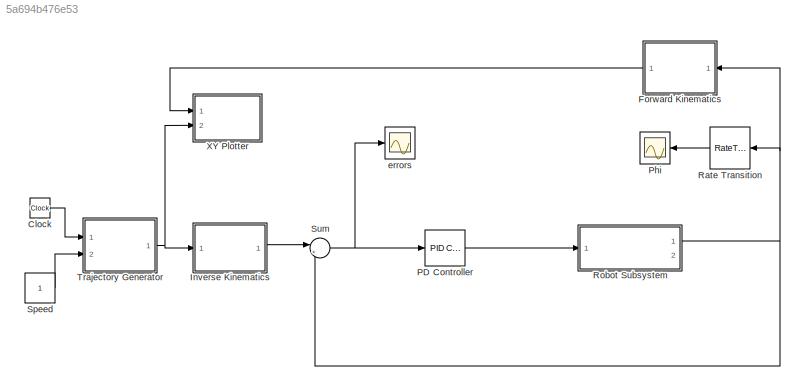
MODEL slx_5a694b476e53
KIND model
CONFIG AbsTol = auto
CONFIG EnableMultiTasking = on
CONFIG FixedStep = 0.001
CONFIG MaxStep = auto
CONFIG MinStep = auto
CONFIG RelTol = 1e-3
CONFIG SampleTimeConstraint = Unconstrained
CONFIG Solver = ode1
CONFIG SolverName = ode1
CONFIG StartTime = 0.0
CONFIG StopTime = 5
BLOCK [Clock] Clock
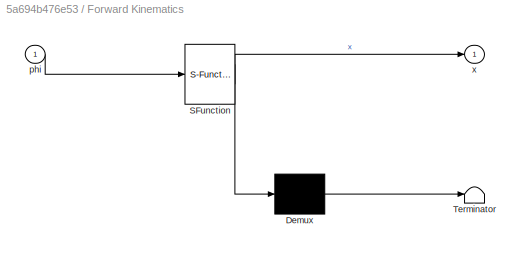
BLOCK [SubSystem] Forward Kinematics
  ErrorFcn = Stateflow.Translate.translate
  PermitHierarchicalResolution = ExplicitOnly
  Ports = [1, 1]
  RequestExecContextInheritance = off
  SFBlockType = MATLAB Function
  TreatAsAtomicUnit = on
BLOCK [Demux] Forward Kinematics/ Demux 
  Outputs = 1
  Ports = [1, 1]
BLOCK [S-Function] Forward Kinematics/ SFunction 
  EnableBusSupport = on
  FunctionName = sf_sfun
  PortCounts = [1 2]
  Ports = [1, 2]
  SFcnIsStateOwnerBlock = off
  SFunctionDeploymentMode = off
  Tag = Stateflow S-Function Lab1_PD 3
BLOCK [Terminator] Forward Kinematics/ Terminator 
BLOCK [Inport] Forward Kinematics/phi
  IconDisplay = Port number
BLOCK [Outport] Forward Kinematics/x
  IconDisplay = Port number
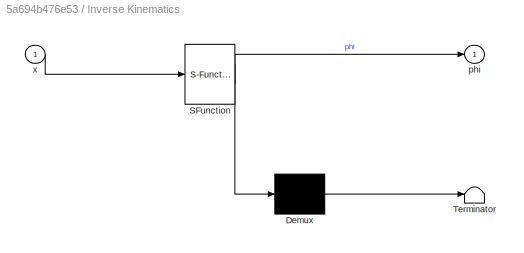
BLOCK [SubSystem] Inverse Kinematics
  ErrorFcn = Stateflow.Translate.translate
  PermitHierarchicalResolution = ExplicitOnly
  Ports = [1, 1]
  RequestExecContextInheritance = off
  SFBlockType = MATLAB Function
  TreatAsAtomicUnit = on
BLOCK [Demux] Inverse Kinematics/ Demux 
  Outputs = 1
  Ports = [1, 1]
BLOCK [S-Function] Inverse Kinematics/ SFunction 
  EnableBusSupport = on
  FunctionName = sf_sfun
  PortCounts = [1 2]
  Ports = [1, 2]
  SFcnIsStateOwnerBlock = off
  SFunctionDeploymentMode = off
  Tag = Stateflow S-Function Lab1_PD 1
BLOCK [Terminator] Inverse Kinematics/ Terminator 
BLOCK [Outport] Inverse Kinematics/phi
  IconDisplay = Port number
BLOCK [Inport] Inverse Kinematics/x
  IconDisplay = Port number
BLOCK [Reference] PD Controller  REF=simulink/Continuous/PID Controller
  AttributesFormatString = 'PGain='%<P>\n'DGain='%<D>
  Ports = [1, 1]
  SourceBlock = simulink/Continuous/PID Controller
  SourceProductBaseCode = SL
  SourceProductName = Simulink
  SourceType = PID 1dof
BLOCK [Scope] Phi
  AttributesFormatString = SampleTime =%<SampleTime>
  Floating = off
  NumInputPorts = 1
  Ports = [1]
  ScopeSpecificationString = Simulink.scopes.TimeScopeBlockCfg('CurrentConfiguration', extmgr.ConfigurationSet(extmgr.Configuration('Core','General UI',true),extmgr.Configuration('Core','Source UI',true),extmgr.Configuration('Sources','WiredSimulink',true,'DataLoggingVariableName','ScopeData3','DataLoggingSaveFormat','StructureWithTime','DataLoggingDecimation','10','DataLoggingDecimateData',true,'SampleTime','0.02'),extmgr.Co...<+1682ch>
BLOCK [RateTransition] Rate Transition
  OutPortSampleTime = 0.05
  OutPortSampleTimeMultiple = 10
  OutPortSampleTimeOpt = Inherit
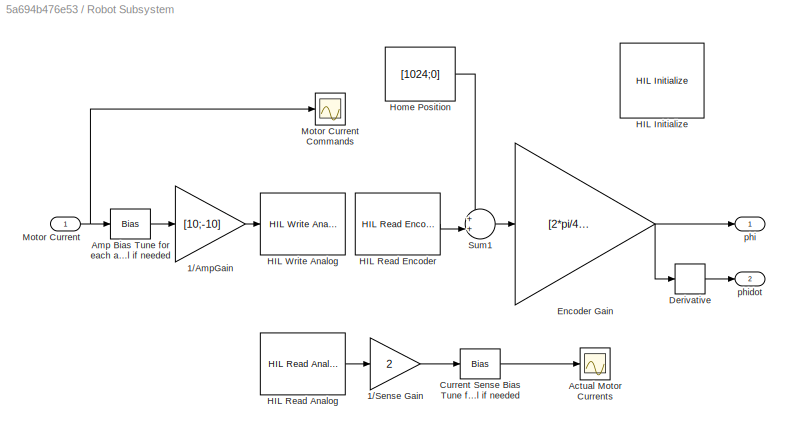
BLOCK [SubSystem] Robot Subsystem
  Ports = [1, 2]
  RequestExecContextInheritance = off
BLOCK [Gain] Robot Subsystem/1//AmpGain
  Gain = [10;-10]
  OutDataTypeStr = Inherit: Inherit via internal rule
  ParamDataTypeStr = Inherit: Inherit via internal rule
  SaturateOnIntegerOverflow = off
BLOCK [Gain] Robot Subsystem/1//Sense Gain
  Gain = 2
  OutDataTypeStr = Inherit: Inherit via internal rule
  ParamDataTypeStr = Inherit: Inherit via internal rule
  SaturateOnIntegerOverflow = off
BLOCK [Scope] Robot Subsystem/Actual Motor Currents
  Floating = off
  NumInputPorts = 1
  Ports = [1]
  ScopeSpecificationString = Simulink.scopes.TimeScopeBlockCfg('CurrentConfiguration', extmgr.ConfigurationSet(extmgr.Configuration('Core','General UI',true),extmgr.Configuration('Core','Source UI',true),extmgr.Configuration('Sources','WiredSimulink',true,'DataLoggingSaveFormat','StructureWithTime','DataLoggingDecimation','1','DataLoggingDecimateData',true),extmgr.Configuration('Visuals','Time Domain',true,'SerializedDisplays...<+1839ch>
BLOCK [Bias] Robot Subsystem/Amp Bias Tune for each amp//channel if needed
  Bias = [-0.042; 0.065]
  SaturateOnIntegerOverflow = off
BLOCK [Bias] Robot Subsystem/Current Sense Bias Tune for each amp//channel if needed
  Bias = [0.02; 0.037]
  SaturateOnIntegerOverflow = off
BLOCK [Derivative] Robot Subsystem/Derivative
BLOCK [Gain] Robot Subsystem/Encoder Gain
  Gain = [2*pi/4096 ; -2*pi/4096]
  OutDataTypeStr = Inherit: Inherit via internal rule
  ParamDataTypeStr = Inherit: Inherit via internal rule
  SaturateOnIntegerOverflow = off
BLOCK [Reference] Robot Subsystem/HIL Initialize  REF=quarc_library/Data Acquisition/Generic/Configuration/HIL Initialize
  AttributesFormatString = %<object_name> (%<board_type>-%<board_number>)
  Ports = []
  SourceBlock = quarc_library/Data Acquisition/Generic/Configuration/HIL Initialize
  SourceProductName = QUARC Targets
  SourceType = HIL Initialize
  UserDataPersistent = on
BLOCK [Reference] Robot Subsystem/HIL Read Analog  REF=quarc_library/Data Acquisition/Generic/Immediate I//O/HIL Read Analog
  AttributesFormatString = (%<object_name>)
  Ports = [0, 1]
  SourceBlock = quarc_library/Data Acquisition/Generic/Immediate I//O/HIL Read Analog
  SourceProductName = QUARC Targets
  SourceType = HIL Read Analog
  UserDataPersistent = on
BLOCK [Reference] Robot Subsystem/HIL Read Encoder  REF=quarc_library/Data Acquisition/Generic/Immediate I//O/HIL Read Encoder
  AttributesFormatString = (%<object_name>)
  Ports = [0, 1]
  SourceBlock = quarc_library/Data Acquisition/Generic/Immediate I//O/HIL Read Encoder
  SourceProductName = QUARC Targets
  SourceType = HIL Read Encoder
  UserDataPersistent = on
BLOCK [Reference] Robot Subsystem/HIL Write Analog  REF=quarc_library/Data Acquisition/Generic/Immediate I//O/HIL Write Analog
  AttributesFormatString = (%<object_name>)
  Ports = [1]
  SourceBlock = quarc_library/Data Acquisition/Generic/Immediate I//O/HIL Write Analog
  SourceProductName = QUARC Targets
  SourceType = HIL Write Analog
  UserDataPersistent = on
BLOCK [Constant] Robot Subsystem/Home Position
  Value = [1024;0]
  VectorParams1D = off
BLOCK [Inport] Robot Subsystem/Motor Current
  IconDisplay = Port number
BLOCK [Scope] Robot Subsystem/Motor Current Commands
  Floating = off
  NumInputPorts = 1
  Ports = [1]
  ScopeSpecificationString = Simulink.scopes.TimeScopeBlockCfg('CurrentConfiguration', extmgr.ConfigurationSet(extmgr.Configuration('Core','General UI',true),extmgr.Configuration('Core','Source UI',true),extmgr.Configuration('Sources','WiredSimulink',true,'DataLoggingVariableName','ScopeData1','DataLoggingSaveFormat','StructureWithTime','DataLoggingDecimation','1','DataLoggingDecimateData',true),extmgr.Configuration('Visuals'...<+1729ch>
BLOCK [Sum] Robot Subsystem/Sum1
  IconShape = round
  InputSameDT = off
  Inputs = ++|
  OutDataTypeStr = Inherit: Inherit via internal rule
  Ports = [2, 1]
  SaturateOnIntegerOverflow = off
BLOCK [Outport] Robot Subsystem/phi
  IconDisplay = Port number
BLOCK [Outport] Robot Subsystem/phidot
  IconDisplay = Port number
  Port = 2
BLOCK [Constant] Speed
  AttributesFormatString = (circles/sec)
BLOCK [Sum] Sum
  IconShape = round
  InputSameDT = off
  Inputs = |+-
  OutDataTypeStr = Inherit: Inherit via internal rule
  Ports = [2, 1]
  SaturateOnIntegerOverflow = off
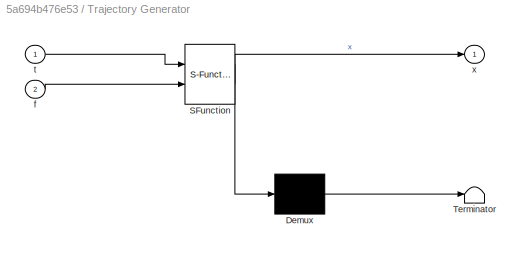
BLOCK [SubSystem] Trajectory Generator
  ErrorFcn = Stateflow.Translate.translate
  PermitHierarchicalResolution = ExplicitOnly
  Ports = [2, 1]
  RequestExecContextInheritance = off
  SFBlockType = MATLAB Function
  TreatAsAtomicUnit = on
BLOCK [Demux] Trajectory Generator/ Demux 
  Outputs = 1
  Ports = [1, 1]
BLOCK [S-Function] Trajectory Generator/ SFunction 
  EnableBusSupport = on
  FunctionName = sf_sfun
  PortCounts = [2 2]
  Ports = [2, 2]
  SFcnIsStateOwnerBlock = off
  SFunctionDeploymentMode = off
  Tag = Stateflow S-Function Lab1_PD 7
BLOCK [Terminator] Trajectory Generator/ Terminator 
BLOCK [Inport] Trajectory Generator/f
  IconDisplay = Port number
  Port = 2
BLOCK [Inport] Trajectory Generator/t
  IconDisplay = Port number
BLOCK [Outport] Trajectory Generator/x
  IconDisplay = Port number
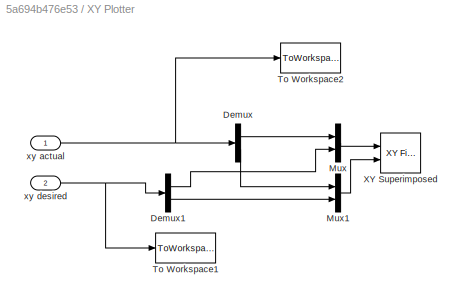
BLOCK [SubSystem] XY Plotter
  Ports = [2]
  RequestExecContextInheritance = off
BLOCK [Demux] XY Plotter/Demux
  DisplayOption = bar
  Outputs = 2
  Ports = [1, 2]
BLOCK [Demux] XY Plotter/Demux1
  DisplayOption = bar
  Outputs = 2
  Ports = [1, 2]
BLOCK [Mux] XY Plotter/Mux
  DisplayOption = bar
  Inputs = 2
  Ports = [2, 1]
BLOCK [Mux] XY Plotter/Mux1
  DisplayOption = bar
  Inputs = 2
  Ports = [2, 1]
BLOCK [ToWorkspace] XY Plotter/To Workspace1
  MaxDataPoints = inf
  Ports = [1]
  SampleTime = -1
  Save2DSignal = 3-D array (concatenate along third dimension)
  VariableName = xy_d
BLOCK [ToWorkspace] XY Plotter/To Workspace2
  MaxDataPoints = inf
  Ports = [1]
  SampleTime = -1
  Save2DSignal = 3-D array (concatenate along third dimension)
  VariableName = xy
BLOCK [Reference] XY Plotter/XY Superimposed  REF=quarc_library/Sinks/Figures/XY Figure
  Ports = [2]
  SourceBlock = quarc_library/Sinks/Figures/XY Figure
  SourceProductName = QUARC Targets
  SourceType = XY Figure
BLOCK [Inport] XY Plotter/xy actual
  IconDisplay = Port number
BLOCK [Inport] XY Plotter/xy desired
  IconDisplay = Port number
  Port = 2
BLOCK [Scope] errors
  Floating = off
  NumInputPorts = 1
  Ports = [1]
  ScopeSpecificationString = Simulink.scopes.TimeScopeBlockCfg('CurrentConfiguration', extmgr.ConfigurationSet(extmgr.Configuration('Core','General UI',true),extmgr.Configuration('Core','Source UI',true),extmgr.Configuration('Sources','WiredSimulink',true,'DataLogging',true,'DataLoggingVariableName','errors','DataLoggingSaveFormat','StructureWithTime','DataLoggingDecimation','1','DataLoggingDecimateData',true),extmgr.Configur...<+1699ch>
LINE Clock:1 -> Trajectory Generator:1
LINE Forward Kinematics:1 -> XY Plotter:1
LINE Inverse Kinematics:1 -> Sum:1
LINE PD Controller:1 -> Robot Subsystem:1
LINE Rate Transition:1 -> Phi:1
LINE Robot Subsystem/1//AmpGain:1 -> Robot Subsystem/HIL Write Analog:1
LINE Robot Subsystem/1//Sense Gain:1 -> Robot Subsystem/Current Sense Bias Tune for each amp//channel if needed:1
LINE Robot Subsystem/Amp Bias Tune for each amp//channel if needed:1 -> Robot Subsystem/1//AmpGain:1
LINE Robot Subsystem/Current Sense Bias Tune for each amp//channel if needed:1 -> Robot Subsystem/Actual Motor Currents:1
LINE Robot Subsystem/Derivative:1 -> Robot Subsystem/phidot:1
NET Robot Subsystem/Encoder Gain:1 -> Robot Subsystem/Derivative:1, Robot Subsystem/phi:1
LINE Robot Subsystem/HIL Read Analog:1 -> Robot Subsystem/1//Sense Gain:1
LINE Robot Subsystem/HIL Read Encoder:1 -> Robot Subsystem/Sum1:2
LINE Robot Subsystem/Home Position:1 -> Robot Subsystem/Sum1:1
NET Robot Subsystem/Motor Current:1 -> Robot Subsystem/Amp Bias Tune for each amp//channel if needed:1, Robot Subsystem/Motor Current Commands:1
LINE Robot Subsystem/Sum1:1 -> Robot Subsystem/Encoder Gain:1
NET Robot Subsystem:1 -> Forward Kinematics:1, Rate Transition:1, Sum:2
LINE Speed:1 -> Trajectory Generator:2
NET Sum:1 -> PD Controller:1, errors:1
NET Trajectory Generator:1 -> Inverse Kinematics:1, XY Plotter:2
LINE XY Plotter/Demux1:1 -> XY Plotter/Mux:2
LINE XY Plotter/Demux1:2 -> XY Plotter/Mux1:2
LINE XY Plotter/Demux:1 -> XY Plotter/Mux:1
LINE XY Plotter/Demux:2 -> XY Plotter/Mux1:1
LINE XY Plotter/Mux1:1 -> XY Plotter/XY Superimposed:2
LINE XY Plotter/Mux:1 -> XY Plotter/XY Superimposed:1
NET XY Plotter/xy actual:1 -> XY Plotter/Demux:1, XY Plotter/To Workspace2:1
NET XY Plotter/xy desired:1 -> XY Plotter/Demux1:1, XY Plotter/To Workspace1:1
note: NET lines group one-source signal fan-out (src -> all destinations, sorted); 1:1 wires keep LINE
CHART Inverse
Kinematics states=1 transitions=1
  STATE_LABEL 'eML_blk_kernel()'
  STATE_LABEL 'SCRIPT:\nfunction phi = fcn(x)\n% This block supports an embeddable subset of the MATLAB language.\n% See the help menu for details. \na1=0.15;\na2=0.15;\nJt = [1 0; -1 1]; % belt drive Jabobian\ntheta = [0;0];\ntheta(2) = -2*atan(sqrt(((a1+a2)^2-(x(1)^2+x(2)^2))/((x(1)^2+x(2)^2)-(a1-a2)^2)));\ntheta(1) = atan2(x(2),x(1))-atan2(a2*sin(theta(2)),a1+a2*cos(theta(2)));\nphi = inv(Jt)*theta; % convert to absolu...<+15ch>'
CHART Forward
Kinematics states=1 transitions=1
  STATE_LABEL 'eML_blk_kernel()'
  STATE_LABEL 'SCRIPT:\nfunction x = fcn(phi)\n% This block supports an embeddable subset of the MATLAB language.\n% See the help menu for details. \na1=.15;\na2=.15;\nx = [0;0];\nx(1) = a1*cos(phi(1))+a2*cos(phi(2));\nx(2) = a1*sin(phi(1))+a2*sin(phi(2));\n'
CHART Trajectory 
Generator states=1 transitions=1
  STATE_LABEL 'eML_blk_kernel()'
  STATE_LABEL 'SCRIPT:\nfunction x = fcn(t,f)\n% This block supports an embeddable subset of the MATLAB language.\n% See the help menu for details. \nx = [0;0];\n\nif t<1 % move robot smoothly from home position @ x=[1.5,1.5] to point on circle @ x=[0.2,0.1]\n        x(1) = 0.15 + 0.025*(1 - cos(pi*t));\n        x(2) = 0.15 - 0.025*(1 - cos(pi*t));\nelseif t<1.5  % accelerate into circling trajectory\n    x(1) = 0.075*cos...<+233ch>'
